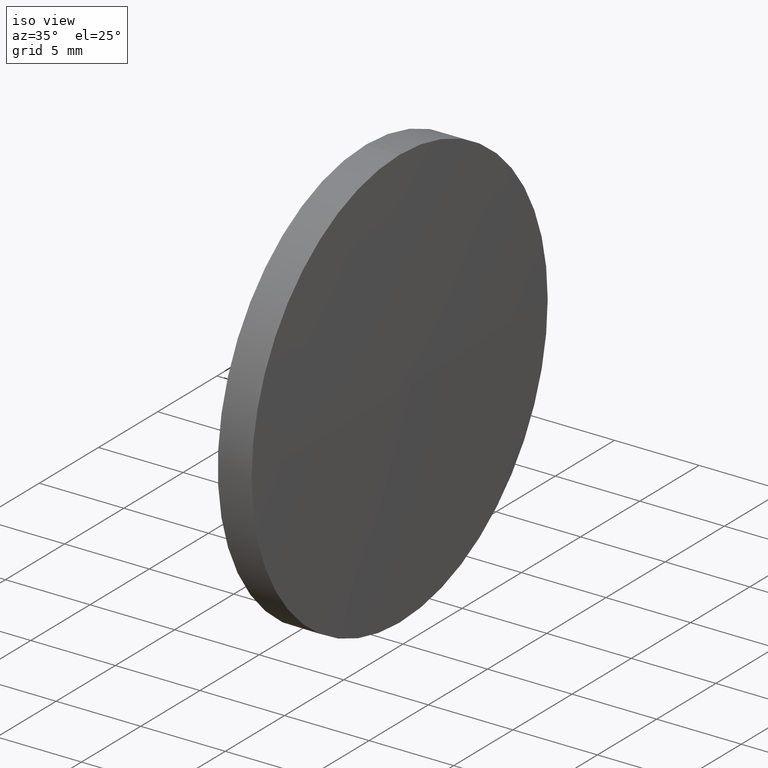
[diagram: clean part render]
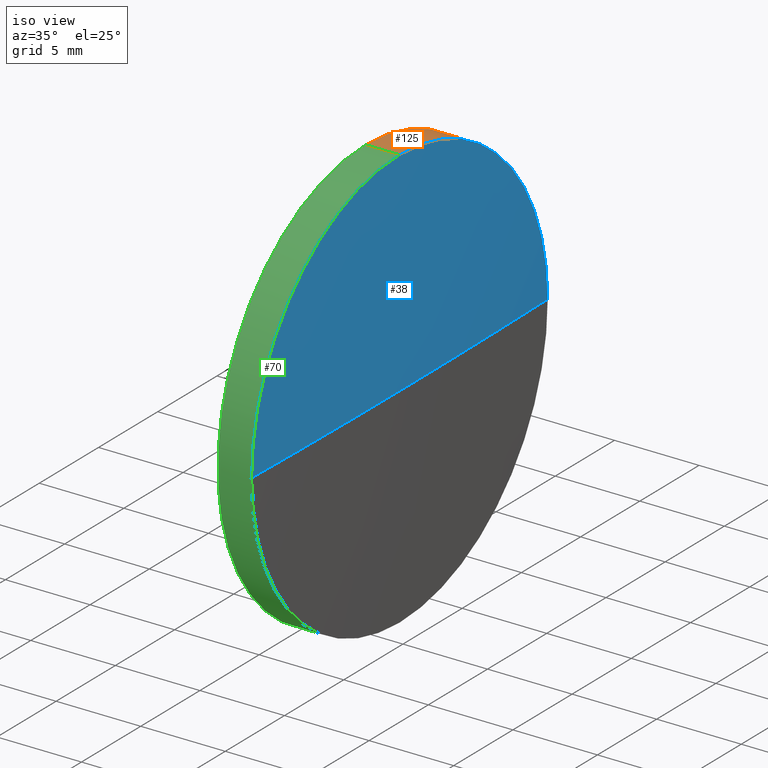
[diagram: same view with three faces highlighted in distinct colors, each labeled with its STEP entity id]
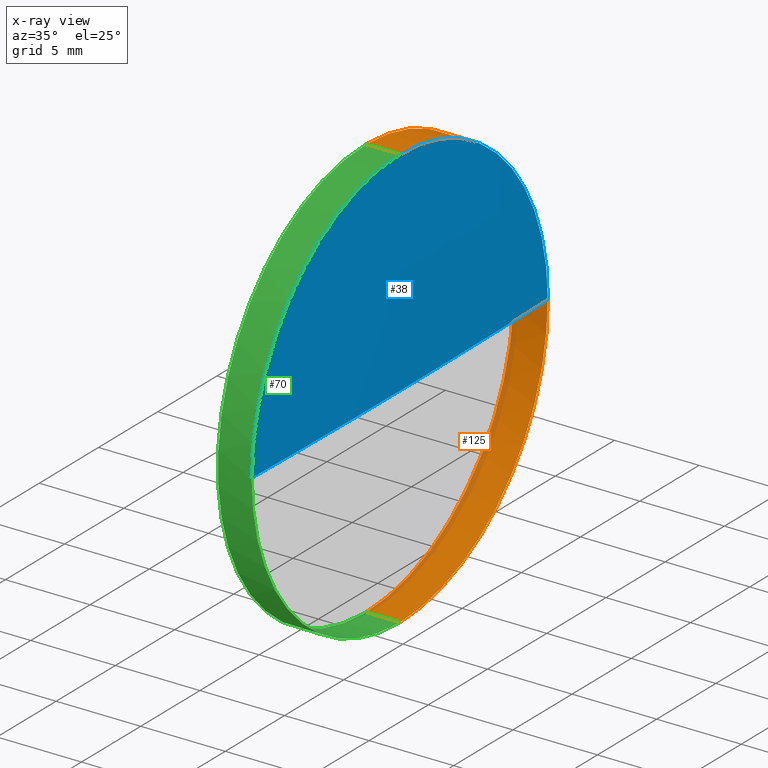
[diagram: x-ray of the same camera — body ghosted, the three highlighted faces saturated]
A machine part, iso view with three faces highlighted in distinct colors.
The next image is the same camera in x-ray (body ghosted, the three faces saturated) — at least one of them is partly hidden behind the body in this view.
Their STEP definitions:

[orange] entity #125 — the highlighted cylindrical surface (partial cylindrical patch) has radius 12.5 mm, axis along (-1, -0, -0).
#10 = VERTEX_POINT ( 'NONE', #57 ) ;
#11 = AXIS2_PLACEMENT_3D ( 'NONE', #118, #175, #129 ) ;
#15 = FACE_OUTER_BOUND ( 'NONE', #60, .T. ) ;
#20 = CARTESIAN_POINT ( 'NONE',  ( 459.7472908259046600, 60.99120596055025300, 12.50000000000000400 ) ) ;
#21 = CARTESIAN_POINT ( 'NONE',  ( 464.1129067286656200, 60.99120596055025300, -12.50000000000000400 ) ) ;
#33 = CARTESIAN_POINT ( 'NONE',  ( 464.1129067286656200, 60.99120596055025300, 12.50000000000000400 ) ) ;
#37 = VERTEX_POINT ( 'NONE', #73 ) ;
#39 = ORIENTED_EDGE ( 'NONE', *, *, #167, .T. ) ;
#46 = DIRECTION ( 'NONE',  ( -1.000000000000000000, -0.0000000000000000000, -0.0000000000000000000 ) ) ;
#48 = DIRECTION ( 'NONE',  ( 0.0000000000000000000, 0.0000000000000000000, 1.000000000000000000 ) ) ;
#52 = VECTOR ( 'NONE', #46, 1000.000000000000000 ) ;
#53 = VECTOR ( 'NONE', #162, 1000.000000000000000 ) ;
#57 = CARTESIAN_POINT ( 'NONE',  ( 464.1129067286656200, 73.49120596054936500, 0.0000000000000000000 ) ) ;
#58 = CARTESIAN_POINT ( 'NONE',  ( 462.1129067286656200, 60.99120596055025300, -12.50000000000000400 ) ) ;
#60 = EDGE_LOOP ( 'NONE', ( #39, #163, #95, #123, #80 ) ) ;
#63 = DIRECTION ( 'NONE',  ( 0.0000000000000000000, 0.0000000000000000000, 1.000000000000000000 ) ) ;
#71 = CARTESIAN_POINT ( 'NONE',  ( 459.7472908259046600, 60.99120596055025300, -12.50000000000000400 ) ) ;
#73 = CARTESIAN_POINT ( 'NONE',  ( 462.1129067286656200, 60.99120596055025300, 12.50000000000000400 ) ) ;
#76 = CARTESIAN_POINT ( 'NONE',  ( 462.1129067286656200, 60.99120596055025300, 0.0000000000000000000 ) ) ;
#77 = DIRECTION ( 'NONE',  ( 0.0000000000000000000, 0.0000000000000000000, 1.000000000000000000 ) ) ;
#79 = LINE ( 'NONE', #71, #52 ) ;
#80 = ORIENTED_EDGE ( 'NONE', *, *, #81, .T. ) ;
#81 = EDGE_CURVE ( 'NONE', #152, #10, #156, .T. ) ;
#86 = AXIS2_PLACEMENT_3D ( 'NONE', #76, #178, #77 ) ;
#89 = EDGE_CURVE ( 'NONE', #141, #114, #79, .T. ) ;
#91 = DIRECTION ( 'NONE',  ( -1.000000000000000000, -0.0000000000000000000, -0.0000000000000000000 ) ) ;
#95 = ORIENTED_EDGE ( 'NONE', *, *, #120, .F. ) ;
#97 = AXIS2_PLACEMENT_3D ( 'NONE', #136, #91, #48 ) ;
#114 = VERTEX_POINT ( 'NONE', #58 ) ;
#117 = CIRCLE ( 'NONE', #97, 12.50000000000000400 ) ;
#118 = CARTESIAN_POINT ( 'NONE',  ( 464.1129067286656200, 60.99120596055025300, 0.0000000000000000000 ) ) ;
#120 = EDGE_CURVE ( 'NONE', #37, #114, #165, .T. ) ;
#123 = ORIENTED_EDGE ( 'NONE', *, *, #179, .F. ) ;
#125 = ADVANCED_FACE ( 'NONE', ( #15 ), #139, .T. ) ;
#129 = DIRECTION ( 'NONE',  ( 0.0000000000000000000, 0.0000000000000000000, 1.000000000000000000 ) ) ;
#134 = DIRECTION ( 'NONE',  ( -1.000000000000000000, -0.0000000000000000000, -0.0000000000000000000 ) ) ;
#136 = CARTESIAN_POINT ( 'NONE',  ( 464.1129067286656200, 60.99120596055025300, 0.0000000000000000000 ) ) ;
#139 = CYLINDRICAL_SURFACE ( 'NONE', #177, 12.50000000000000400 ) ;
#141 = VERTEX_POINT ( 'NONE', #21 ) ;
#147 = CARTESIAN_POINT ( 'NONE',  ( 459.7472908259046600, 60.99120596055025300, 0.0000000000000000000 ) ) ;
#152 = VERTEX_POINT ( 'NONE', #33 ) ;
#156 = CIRCLE ( 'NONE', #11, 12.50000000000000400 ) ;
#162 = DIRECTION ( 'NONE',  ( -1.000000000000000000, -0.0000000000000000000, -0.0000000000000000000 ) ) ;
#163 = ORIENTED_EDGE ( 'NONE', *, *, #89, .T. ) ;
#165 = CIRCLE ( 'NONE', #86, 12.50000000000000400 ) ;
#167 = EDGE_CURVE ( 'NONE', #10, #141, #117, .T. ) ;
#170 = LINE ( 'NONE', #20, #53 ) ;
#175 = DIRECTION ( 'NONE',  ( -1.000000000000000000, -0.0000000000000000000, -0.0000000000000000000 ) ) ;
#177 = AXIS2_PLACEMENT_3D ( 'NONE', #147, #134, #63 ) ;
#178 = DIRECTION ( 'NONE',  ( -1.000000000000000000, -0.0000000000000000000, -0.0000000000000000000 ) ) ;
#179 = EDGE_CURVE ( 'NONE', #152, #37, #170, .T. ) ;

[blue] entity #38 — the highlighted spherical surface has radius 520.908 mm.
#2 = DIRECTION ( 'NONE',  ( -1.000000000000000000, -0.0000000000000000000, -0.0000000000000000000 ) ) ;
#10 = VERTEX_POINT ( 'NONE', #57 ) ;
#11 = AXIS2_PLACEMENT_3D ( 'NONE', #118, #175, #129 ) ;
#18 = ORIENTED_EDGE ( 'NONE', *, *, #51, .F. ) ;
#19 = CARTESIAN_POINT ( 'NONE',  ( -56.64542660467248000, 60.99120596054969900, 0.0000000000000000000 ) ) ;
#23 = EDGE_CURVE ( 'NONE', #31, #108, #174, .T. ) ;
#27 = ORIENTED_EDGE ( 'NONE', *, *, #61, .T. ) ;
#30 = DIRECTION ( 'NONE',  ( -0.0000000000000000000, 0.0000000000000000000, 1.000000000000000000 ) ) ;
#31 = VERTEX_POINT ( 'NONE', #115 ) ;
#33 = CARTESIAN_POINT ( 'NONE',  ( 464.1129067286656200, 60.99120596055025300, 12.50000000000000400 ) ) ;
#38 = ADVANCED_FACE ( 'NONE', ( #54 ), #66, .T. ) ;
#42 = DIRECTION ( 'NONE',  ( 0.0000000000000000000, 1.224646799147353200E-016, -1.000000000000000000 ) ) ;
#43 = CIRCLE ( 'NONE', #93, 520.9083333333380800 ) ;
#47 = CIRCLE ( 'NONE', #181, 12.50000000000000400 ) ;
#51 = EDGE_CURVE ( 'NONE', #108, #152, #47, .T. ) ;
#54 = FACE_OUTER_BOUND ( 'NONE', #155, .T. ) ;
#55 = AXIS2_PLACEMENT_3D ( 'NONE', #100, #99, #172 ) ;
#57 = CARTESIAN_POINT ( 'NONE',  ( 464.1129067286656200, 73.49120596054936500, 0.0000000000000000000 ) ) ;
#59 = CARTESIAN_POINT ( 'NONE',  ( 464.1129067286656200, 48.49120596055059500, -1.530808498934081900E-015 ) ) ;
#61 = EDGE_CURVE ( 'NONE', #31, #10, #43, .T. ) ;
#66 = SPHERICAL_SURFACE ( 'NONE', #55, 520.9083333333380800 ) ;
#81 = EDGE_CURVE ( 'NONE', #152, #10, #156, .T. ) ;
#93 = AXIS2_PLACEMENT_3D ( 'NONE', #19, #30, #173 ) ;
#99 = DIRECTION ( 'NONE',  ( -0.0000000000000000000, 0.0000000000000000000, -1.000000000000000000 ) ) ;
#100 = CARTESIAN_POINT ( 'NONE',  ( -56.64542660467248000, 60.99120596054969900, 0.0000000000000000000 ) ) ;
#103 = CARTESIAN_POINT ( 'NONE',  ( -56.64542660467248000, 60.99120596054969900, 0.0000000000000000000 ) ) ;
#108 = VERTEX_POINT ( 'NONE', #59 ) ;
#113 = CARTESIAN_POINT ( 'NONE',  ( 464.1129067286656200, 60.99120596055025300, 0.0000000000000000000 ) ) ;
#115 = CARTESIAN_POINT ( 'NONE',  ( 464.2629067286656000, 60.99120596054973500, 0.0000000000000000000 ) ) ;
#118 = CARTESIAN_POINT ( 'NONE',  ( 464.1129067286656200, 60.99120596055025300, 0.0000000000000000000 ) ) ;
#119 = ORIENTED_EDGE ( 'NONE', *, *, #81, .F. ) ;
#129 = DIRECTION ( 'NONE',  ( 0.0000000000000000000, 0.0000000000000000000, 1.000000000000000000 ) ) ;
#152 = VERTEX_POINT ( 'NONE', #33 ) ;
#155 = EDGE_LOOP ( 'NONE', ( #166, #27, #119, #18 ) ) ;
#156 = CIRCLE ( 'NONE', #11, 12.50000000000000400 ) ;
#158 = AXIS2_PLACEMENT_3D ( 'NONE', #103, #42, #159 ) ;
#159 = DIRECTION ( 'NONE',  ( 0.0000000000000000000, 1.000000000000000000, 1.224646799147353200E-016 ) ) ;
#166 = ORIENTED_EDGE ( 'NONE', *, *, #23, .F. ) ;
#172 = DIRECTION ( 'NONE',  ( 0.0000000000000000000, 1.000000000000000000, 0.0000000000000000000 ) ) ;
#173 = DIRECTION ( 'NONE',  ( 1.000000000000000000, 0.0000000000000000000, 0.0000000000000000000 ) ) ;
#174 = CIRCLE ( 'NONE', #158, 520.9083333333380800 ) ;
#175 = DIRECTION ( 'NONE',  ( -1.000000000000000000, -0.0000000000000000000, -0.0000000000000000000 ) ) ;
#176 = DIRECTION ( 'NONE',  ( 0.0000000000000000000, 0.0000000000000000000, 1.000000000000000000 ) ) ;
#181 = AXIS2_PLACEMENT_3D ( 'NONE', #113, #2, #176 ) ;

[green] entity #70 — the highlighted cylindrical surface (partial cylindrical patch) has radius 12.5 mm, axis along (-1, -0, -0).
#2 = DIRECTION ( 'NONE',  ( -1.000000000000000000, -0.0000000000000000000, -0.0000000000000000000 ) ) ;
#6 = CYLINDRICAL_SURFACE ( 'NONE', #29, 12.50000000000000400 ) ;
#9 = CIRCLE ( 'NONE', #25, 12.50000000000000400 ) ;
#20 = CARTESIAN_POINT ( 'NONE',  ( 459.7472908259046600, 60.99120596055025300, 12.50000000000000400 ) ) ;
#21 = CARTESIAN_POINT ( 'NONE',  ( 464.1129067286656200, 60.99120596055025300, -12.50000000000000400 ) ) ;
#24 = FACE_OUTER_BOUND ( 'NONE', #111, .T. ) ;
#25 = AXIS2_PLACEMENT_3D ( 'NONE', #128, #161, #74 ) ;
#28 = DIRECTION ( 'NONE',  ( 0.0000000000000000000, 0.0000000000000000000, 1.000000000000000000 ) ) ;
#29 = AXIS2_PLACEMENT_3D ( 'NONE', #127, #130, #28 ) ;
#33 = CARTESIAN_POINT ( 'NONE',  ( 464.1129067286656200, 60.99120596055025300, 12.50000000000000400 ) ) ;
#37 = VERTEX_POINT ( 'NONE', #73 ) ;
#40 = AXIS2_PLACEMENT_3D ( 'NONE', #164, #90, #121 ) ;
#46 = DIRECTION ( 'NONE',  ( -1.000000000000000000, -0.0000000000000000000, -0.0000000000000000000 ) ) ;
#47 = CIRCLE ( 'NONE', #181, 12.50000000000000400 ) ;
#51 = EDGE_CURVE ( 'NONE', #108, #152, #47, .T. ) ;
#52 = VECTOR ( 'NONE', #46, 1000.000000000000000 ) ;
#53 = VECTOR ( 'NONE', #162, 1000.000000000000000 ) ;
#58 = CARTESIAN_POINT ( 'NONE',  ( 462.1129067286656200, 60.99120596055025300, -12.50000000000000400 ) ) ;
#59 = CARTESIAN_POINT ( 'NONE',  ( 464.1129067286656200, 48.49120596055059500, -1.530808498934081900E-015 ) ) ;
#68 = CIRCLE ( 'NONE', #40, 12.50000000000000400 ) ;
#70 = ADVANCED_FACE ( 'NONE', ( #24 ), #6, .T. ) ;
#71 = CARTESIAN_POINT ( 'NONE',  ( 459.7472908259046600, 60.99120596055025300, -12.50000000000000400 ) ) ;
#73 = CARTESIAN_POINT ( 'NONE',  ( 462.1129067286656200, 60.99120596055025300, 12.50000000000000400 ) ) ;
#74 = DIRECTION ( 'NONE',  ( 0.0000000000000000000, 0.0000000000000000000, 1.000000000000000000 ) ) ;
#79 = LINE ( 'NONE', #71, #52 ) ;
#82 = ORIENTED_EDGE ( 'NONE', *, *, #89, .F. ) ;
#89 = EDGE_CURVE ( 'NONE', #141, #114, #79, .T. ) ;
#90 = DIRECTION ( 'NONE',  ( -1.000000000000000000, -0.0000000000000000000, -0.0000000000000000000 ) ) ;
#98 = EDGE_CURVE ( 'NONE', #141, #108, #9, .T. ) ;
#108 = VERTEX_POINT ( 'NONE', #59 ) ;
#110 = EDGE_CURVE ( 'NONE', #114, #37, #68, .T. ) ;
#111 = EDGE_LOOP ( 'NONE', ( #82, #131, #140, #112, #184 ) ) ;
#112 = ORIENTED_EDGE ( 'NONE', *, *, #179, .T. ) ;
#113 = CARTESIAN_POINT ( 'NONE',  ( 464.1129067286656200, 60.99120596055025300, 0.0000000000000000000 ) ) ;
#114 = VERTEX_POINT ( 'NONE', #58 ) ;
#121 = DIRECTION ( 'NONE',  ( 0.0000000000000000000, 0.0000000000000000000, 1.000000000000000000 ) ) ;
#127 = CARTESIAN_POINT ( 'NONE',  ( 459.7472908259046600, 60.99120596055025300, 0.0000000000000000000 ) ) ;
#128 = CARTESIAN_POINT ( 'NONE',  ( 464.1129067286656200, 60.99120596055025300, 0.0000000000000000000 ) ) ;
#130 = DIRECTION ( 'NONE',  ( -1.000000000000000000, -0.0000000000000000000, -0.0000000000000000000 ) ) ;
#131 = ORIENTED_EDGE ( 'NONE', *, *, #98, .T. ) ;
#140 = ORIENTED_EDGE ( 'NONE', *, *, #51, .T. ) ;
#141 = VERTEX_POINT ( 'NONE', #21 ) ;
#152 = VERTEX_POINT ( 'NONE', #33 ) ;
#161 = DIRECTION ( 'NONE',  ( -1.000000000000000000, -0.0000000000000000000, -0.0000000000000000000 ) ) ;
#162 = DIRECTION ( 'NONE',  ( -1.000000000000000000, -0.0000000000000000000, -0.0000000000000000000 ) ) ;
#164 = CARTESIAN_POINT ( 'NONE',  ( 462.1129067286656200, 60.99120596055025300, 0.0000000000000000000 ) ) ;
#170 = LINE ( 'NONE', #20, #53 ) ;
#176 = DIRECTION ( 'NONE',  ( 0.0000000000000000000, 0.0000000000000000000, 1.000000000000000000 ) ) ;
#179 = EDGE_CURVE ( 'NONE', #152, #37, #170, .T. ) ;
#181 = AXIS2_PLACEMENT_3D ( 'NONE', #113, #2, #176 ) ;
#184 = ORIENTED_EDGE ( 'NONE', *, *, #110, .F. ) ;